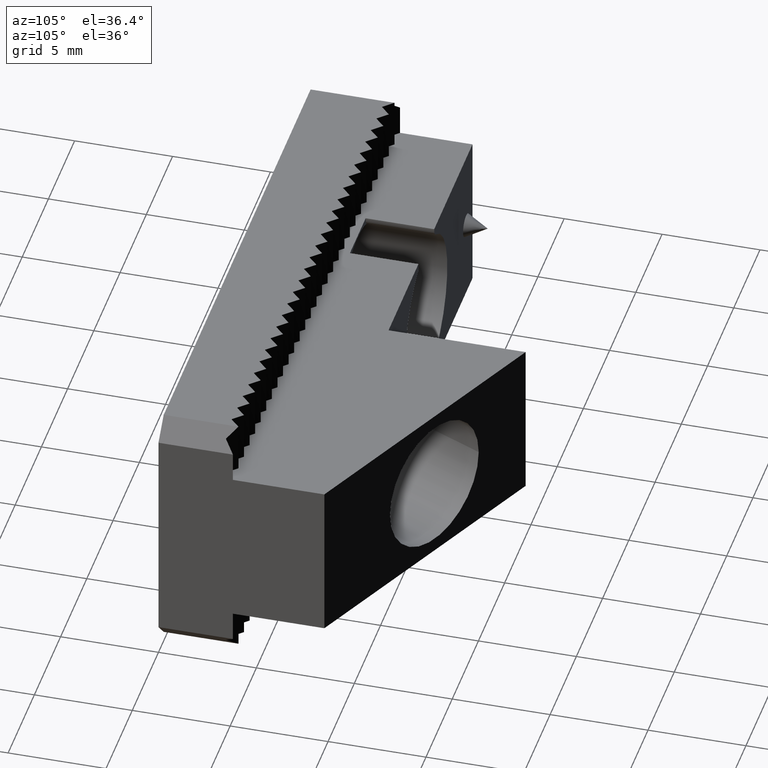
[diagram: clean part render]
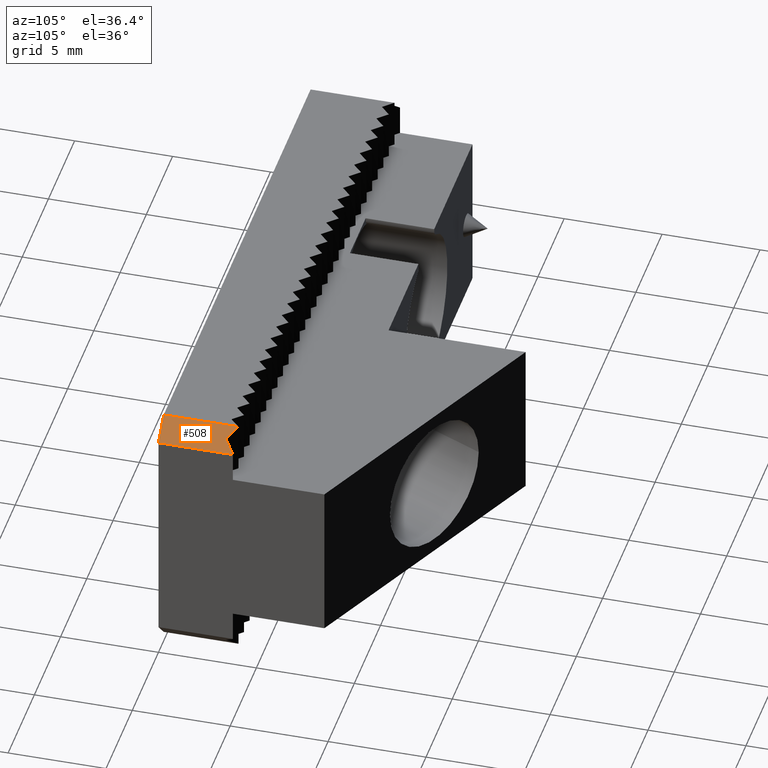
[diagram: same view with one face highlighted and labeled with its STEP entity id]
A machine part, auxiliary view. The second image highlights one B-rep face of the part: STEP entity #508.
In plain terms, the highlighted planar face has unit normal (0.7071, 0, 0.7071).
Its self-contained STEP definition (entity closure, byte-faithful):
#195 = VERTEX_POINT ( 'NONE', #347 ) ;
#204 = VERTEX_POINT ( 'NONE', #362 ) ;
#236 = VERTEX_POINT ( 'NONE', #394 ) ;
#255 = VERTEX_POINT ( 'NONE', #413 ) ;
#347 = CARTESIAN_POINT ( 'NONE',  ( 28.99999999999997900, 0.0000000000000000000, 6.650000000000003000 ) ) ;
#362 = CARTESIAN_POINT ( 'NONE',  ( 28.99999999999998900, 3.812570337060859200, 6.649999999999999500 ) ) ;
#394 = CARTESIAN_POINT ( 'NONE',  ( 30.00000000000000000, 0.0000000000000000000, 5.649999999999988800 ) ) ;
#413 = CARTESIAN_POINT ( 'NONE',  ( 30.00000000000000000, 3.799999999999999800, 5.649999999999988800 ) ) ;
#508 = ADVANCED_FACE ( 'NONE', ( #2543 ), #2493, .T. ) ;
#705 = VERTEX_POINT ( 'NONE', #3263 ) ;
#830 = VERTEX_POINT ( 'NONE', #3388 ) ;
#893 = EDGE_CURVE ( 'NONE', #255, #236, #2657, .T. ) ;
#965 = EDGE_CURVE ( 'NONE', #236, #195, #3723, .T. ) ;
#982 = EDGE_CURVE ( 'NONE', #195, #204, #3756, .T. ) ;
#1029 = EDGE_LOOP ( 'NONE', ( #2121, #2122, #2123, #2124, #2125, #2126 ) ) ;
#1332 = EDGE_CURVE ( 'NONE', #705, #255, #3870, .T. ) ;
#1528 = EDGE_CURVE ( 'NONE', #204, #830, #4717, .T. ) ;
#1530 = EDGE_CURVE ( 'NONE', #830, #705, #4601, .T. ) ;
#2121 = ORIENTED_EDGE ( 'NONE', *, *, #965, .F. ) ;
#2122 = ORIENTED_EDGE ( 'NONE', *, *, #893, .F. ) ;
#2123 = ORIENTED_EDGE ( 'NONE', *, *, #1332, .F. ) ;
#2124 = ORIENTED_EDGE ( 'NONE', *, *, #1530, .F. ) ;
#2125 = ORIENTED_EDGE ( 'NONE', *, *, #1528, .F. ) ;
#2126 = ORIENTED_EDGE ( 'NONE', *, *, #982, .F. ) ;
#2493 = PLANE ( 'NONE',  #2827 ) ;
#2543 = FACE_OUTER_BOUND ( 'NONE', #1029, .T. ) ;
#2657 = LINE ( 'NONE', #3430, #2660 ) ;
#2660 = VECTOR ( 'NONE', #3431, 1000.000000000000000 ) ;
#2827 = AXIS2_PLACEMENT_3D ( 'NONE', #2934, #2936, #2937 ) ;
#2934 = CARTESIAN_POINT ( 'NONE',  ( 28.99999999999998900, 0.0000000000000000000, 6.650000000000000400 ) ) ;
#2936 = DIRECTION ( 'NONE',  ( 0.7071067811865475700, 0.0000000000000000000, 0.7071067811865475700 ) ) ;
#2937 = DIRECTION ( 'NONE',  ( 0.7071067811865474600, 0.0000000000000000000, -0.7071067811865474600 ) ) ;
#3263 = CARTESIAN_POINT ( 'NONE',  ( 29.99597306114840100, 3.800067115647526500, 5.654026938851587600 ) ) ;
#3388 = CARTESIAN_POINT ( 'NONE',  ( 29.48763972781506800, 3.308400448980859800, 6.162360272184919600 ) ) ;
#3430 = CARTESIAN_POINT ( 'NONE',  ( 30.00000000000000000, 0.0000000000000000000, 5.649999999999988800 ) ) ;
#3431 = DIRECTION ( 'NONE',  ( 0.0000000000000000000, -1.000000000000000000, 0.0000000000000000000 ) ) ;
#3577 = CARTESIAN_POINT ( 'NONE',  ( 28.99999999999998900, 0.0000000000000000000, 6.650000000000000400 ) ) ;
#3578 = DIRECTION ( 'NONE',  ( -0.7071067811865474600, 0.0000000000000000000, 0.7071067811865474600 ) ) ;
#3613 = CARTESIAN_POINT ( 'NONE',  ( 28.99999999999998900, 3.799999999999999800, 6.650000000000000400 ) ) ;
#3614 = DIRECTION ( 'NONE',  ( 0.0000000000000000000, 1.000000000000000000, 0.0000000000000000000 ) ) ;
#3723 = LINE ( 'NONE', #3577, #3726 ) ;
#3726 = VECTOR ( 'NONE', #3578, 1000.000000000000100 ) ;
#3756 = LINE ( 'NONE', #3613, #3759 ) ;
#3759 = VECTOR ( 'NONE', #3614, 1000.000000000000000 ) ;
#3870 = LINE ( 'NONE', #4014, #3874 ) ;
#3874 = VECTOR ( 'NONE', #4019, 1000.000000000000100 ) ;
#4014 = CARTESIAN_POINT ( 'NONE',  ( 29.03180113873072100, 3.816136647687821300, 6.618198861269268800 ) ) ;
#4019 = DIRECTION ( 'NONE',  ( 0.7070576816634396300, -0.01178429469439066000, -0.7070576816634396300 ) ) ;
#4289 = CARTESIAN_POINT ( 'NONE',  ( 28.06532460648558200, 1.932718610317912800, 7.584675393514403100 ) ) ;
#4410 = CARTESIAN_POINT ( 'NONE',  ( 30.28441829477505500, 2.484612439073076800, 5.365581705224933300 ) ) ;
#4411 = DIRECTION ( 'NONE',  ( 0.5708281704241392500, -0.5901782778961451900, -0.5708281704241392500 ) ) ;
#4415 = DIRECTION ( 'NONE',  ( 0.5836585719174660600, 0.5645222252972228500, -0.5836585719174660600 ) ) ;
#4601 = LINE ( 'NONE', #4289, #4724 ) ;
#4717 = LINE ( 'NONE', #4410, #4720 ) ;
#4720 = VECTOR ( 'NONE', #4411, 1000.000000000000100 ) ;
#4724 = VECTOR ( 'NONE', #4415, 1000.000000000000000 ) ;